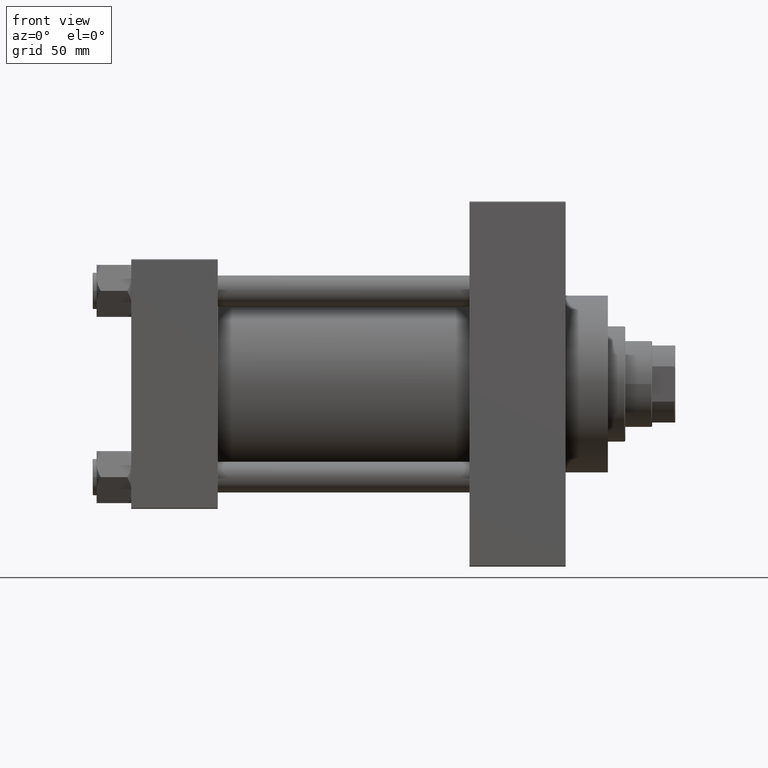
[diagram: clean part render]
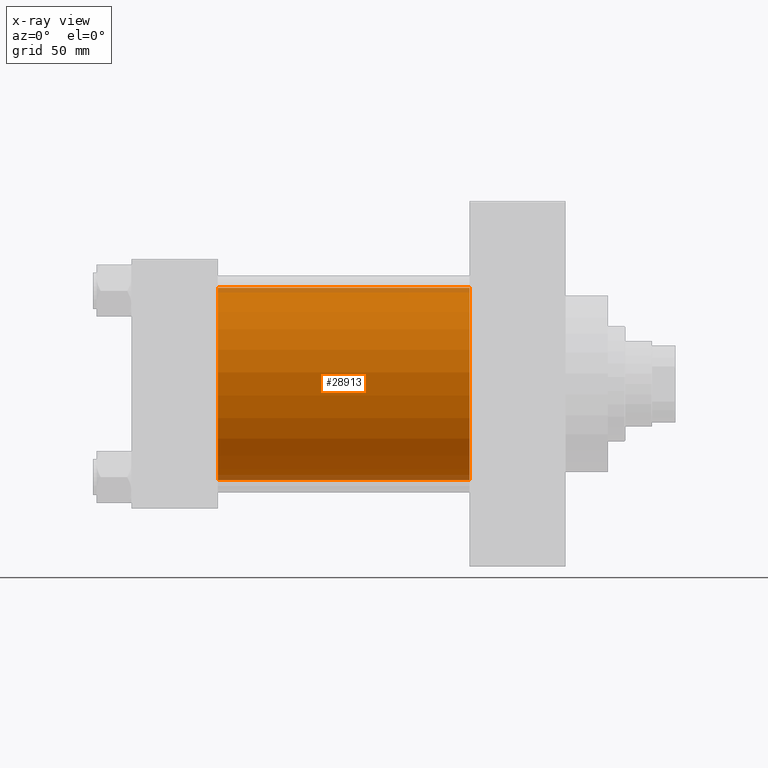
[diagram: x-ray — body ghosted, one internal face saturated and labeled with its STEP entity id]
A machine part, front view, then the same camera in x-ray: the body is ghosted and one INTERNAL B-rep face — a face not visible from any outside direction — is saturated and labeled: STEP entity #28913.
In plain terms, the highlighted cylindrical surface (partial cylindrical patch) has radius 50 mm, axis along (-1, -0, -0).
Its self-contained STEP definition (entity closure, byte-faithful):
#77 = FACE_OUTER_BOUND ( 'NONE', #30474, .T. ) ;
#1915 = DIRECTION ( 'NONE',  ( -1.000000000000000000, -0.000000000000000000, -0.000000000000000000 ) ) ;
#2304 = EDGE_CURVE ( 'NONE', #3588, #43341, #20181, .T. ) ;
#2869 = ORIENTED_EDGE ( 'NONE', *, *, #28510, .T. ) ;
#3588 = VERTEX_POINT ( 'NONE', #15797 ) ;
#7479 = ORIENTED_EDGE ( 'NONE', *, *, #20068, .F. ) ;
#9692 = CIRCLE ( 'NONE', #13514, 50.00000000000000000 ) ;
#10662 = DIRECTION ( 'NONE',  ( 1.000000000000000000, 0.000000000000000000, 0.000000000000000000 ) ) ;
#11552 = CARTESIAN_POINT ( 'NONE',  ( 45.00000000000000000, -2.602085213965210642E-15, 50.00000000000000000 ) ) ;
#11856 = CARTESIAN_POINT ( 'NONE',  ( 45.00000000000000000, 3.521148781771555838E-15, -50.00000000000000000 ) ) ;
#12356 = DIRECTION ( 'NONE',  ( 0.000000000000000000, 0.000000000000000000, -1.000000000000000000 ) ) ;
#13246 = LINE ( 'NONE', #34924, #30419 ) ;
#13510 = ORIENTED_EDGE ( 'NONE', *, *, #2304, .T. ) ;
#13514 = AXIS2_PLACEMENT_3D ( 'NONE', #34269, #30657, #12356 ) ;
#14858 = VECTOR ( 'NONE', #39304, 1000.000000000000000 ) ;
#15797 = CARTESIAN_POINT ( 'NONE',  ( 176.0000000000000000, -2.602085213965210642E-15, 50.00000000000000000 ) ) ;
#17617 = CARTESIAN_POINT ( 'NONE',  ( 176.0000000000000000, -2.602085213965210642E-15, 50.00000000000000000 ) ) ;
#18316 = VERTEX_POINT ( 'NONE', #11552 ) ;
#20068 = EDGE_CURVE ( 'NONE', #3588, #18316, #21007, .T. ) ;
#20181 = CIRCLE ( 'NONE', #26307, 50.00000000000000000 ) ;
#21007 = LINE ( 'NONE', #17617, #14858 ) ;
#22508 = DIRECTION ( 'NONE',  ( 0.000000000000000000, 0.000000000000000000, 1.000000000000000000 ) ) ;
#23539 = AXIS2_PLACEMENT_3D ( 'NONE', #44409, #36233, #22508 ) ;
#25600 = DIRECTION ( 'NONE',  ( 0.000000000000000000, 0.000000000000000000, -1.000000000000000000 ) ) ;
#26278 = ORIENTED_EDGE ( 'NONE', *, *, #29765, .F. ) ;
#26307 = AXIS2_PLACEMENT_3D ( 'NONE', #32573, #10662, #25600 ) ;
#28510 = EDGE_CURVE ( 'NONE', #43341, #34153, #13246, .T. ) ;
#28913 = ADVANCED_FACE ( 'NONE', ( #77 ), #41028, .F. ) ;
#29765 = EDGE_CURVE ( 'NONE', #18316, #34153, #9692, .T. ) ;
#30419 = VECTOR ( 'NONE', #1915, 1000.000000000000000 ) ;
#30474 = EDGE_LOOP ( 'NONE', ( #13510, #2869, #26278, #7479 ) ) ;
#30657 = DIRECTION ( 'NONE',  ( 1.000000000000000000, 0.000000000000000000, 0.000000000000000000 ) ) ;
#32573 = CARTESIAN_POINT ( 'NONE',  ( 176.0000000000000000, -2.602085213965210642E-15, 0.000000000000000000 ) ) ;
#34153 = VERTEX_POINT ( 'NONE', #11856 ) ;
#34269 = CARTESIAN_POINT ( 'NONE',  ( 45.00000000000000000, -2.602085213965210642E-15, 0.000000000000000000 ) ) ;
#34924 = CARTESIAN_POINT ( 'NONE',  ( 176.0000000000000000, 3.521148781771555838E-15, -50.00000000000000000 ) ) ;
#36233 = DIRECTION ( 'NONE',  ( -1.000000000000000000, -0.000000000000000000, -0.000000000000000000 ) ) ;
#39304 = DIRECTION ( 'NONE',  ( -1.000000000000000000, -0.000000000000000000, -0.000000000000000000 ) ) ;
#39803 = CARTESIAN_POINT ( 'NONE',  ( 176.0000000000000000, 3.521148781771555838E-15, -50.00000000000000000 ) ) ;
#41028 = CYLINDRICAL_SURFACE ( 'NONE', #23539, 50.00000000000000000 ) ;
#43341 = VERTEX_POINT ( 'NONE', #39803 ) ;
#44409 = CARTESIAN_POINT ( 'NONE',  ( 176.0000000000000000, -2.602085213965210642E-15, 0.000000000000000000 ) ) ;